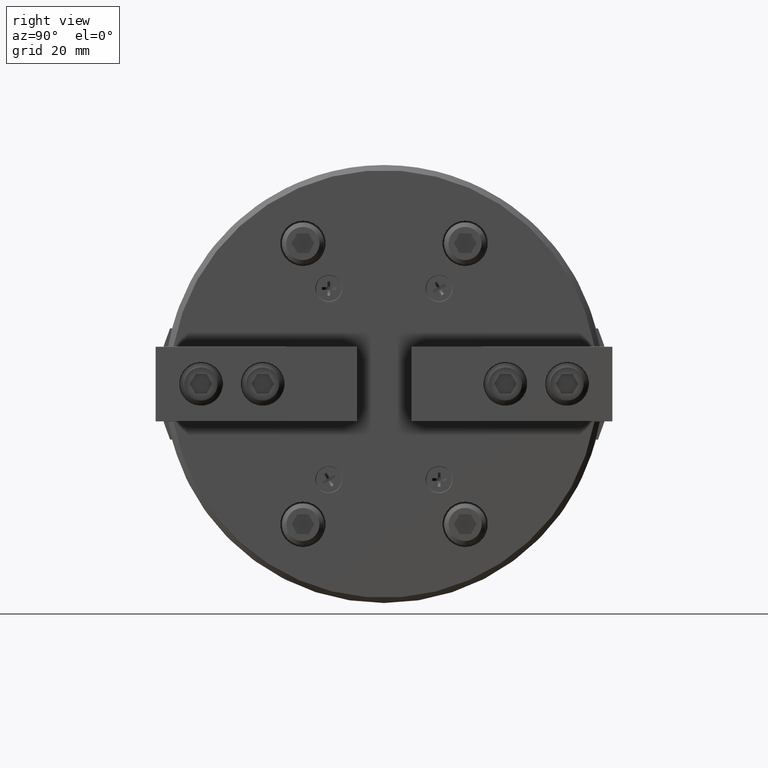
[diagram: clean part render]
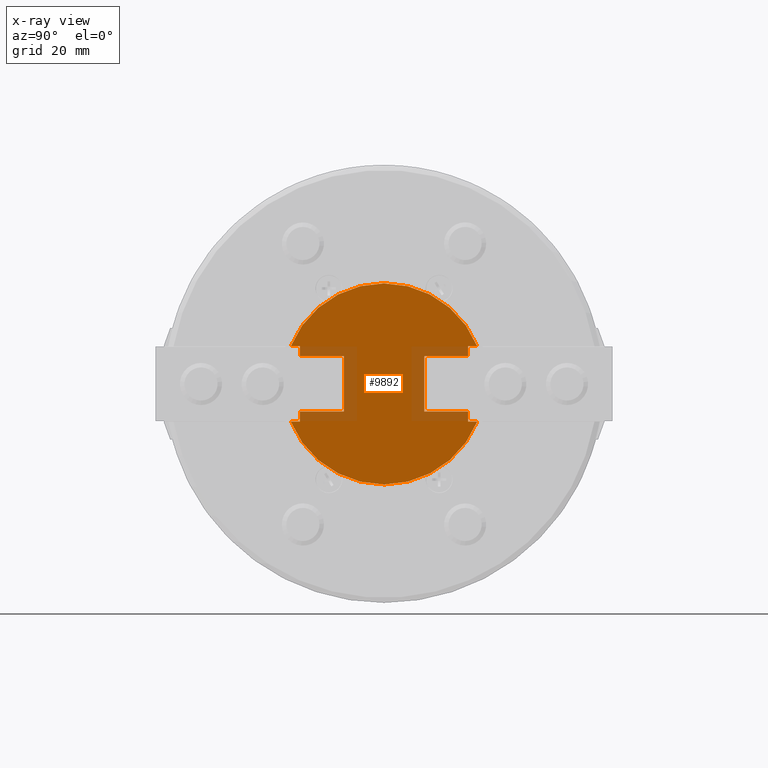
[diagram: x-ray — body ghosted, one internal face saturated and labeled with its STEP entity id]
A machine part, right view, then the same camera in x-ray: the body is ghosted and one INTERNAL B-rep face — a face not visible from any outside direction — is saturated and labeled: STEP entity #9892.
In plain terms, the highlighted planar face has unit normal (-1, 0, 0).
Its self-contained STEP definition (entity closure, byte-faithful):
#584=CIRCLE('',#10822,31.);
#585=CIRCLE('',#10823,31.);
#3205=ORIENTED_EDGE('',*,*,#4584,.T.);
#3206=ORIENTED_EDGE('',*,*,#4597,.T.);
#3207=ORIENTED_EDGE('',*,*,#4598,.T.);
#3208=ORIENTED_EDGE('',*,*,#4599,.T.);
#3209=ORIENTED_EDGE('',*,*,#4600,.T.);
#3210=ORIENTED_EDGE('',*,*,#4601,.T.);
#3211=ORIENTED_EDGE('',*,*,#4602,.T.);
#3212=ORIENTED_EDGE('',*,*,#4603,.T.);
#3213=ORIENTED_EDGE('',*,*,#4604,.T.);
#3214=ORIENTED_EDGE('',*,*,#4605,.T.);
#3215=ORIENTED_EDGE('',*,*,#4591,.F.);
#3216=ORIENTED_EDGE('',*,*,#4588,.T.);
#3217=ORIENTED_EDGE('',*,*,#4594,.T.);
#3218=ORIENTED_EDGE('',*,*,#4596,.T.);
#3219=ORIENTED_EDGE('',*,*,#4581,.F.);
#3220=ORIENTED_EDGE('',*,*,#4578,.F.);
#4578=EDGE_CURVE('',#5489,#5487,#6428,.T.);
#4581=EDGE_CURVE('',#5487,#5491,#6431,.T.);
#4584=EDGE_CURVE('',#5489,#5493,#6434,.T.);
#4588=EDGE_CURVE('',#5495,#5497,#6438,.T.);
#4591=EDGE_CURVE('',#5495,#5498,#6441,.T.);
#4594=EDGE_CURVE('',#5497,#5501,#6444,.T.);
#4596=EDGE_CURVE('',#5501,#5491,#6446,.T.);
#4597=EDGE_CURVE('',#5493,#5502,#584,.T.);
#4598=EDGE_CURVE('',#5502,#5503,#6447,.T.);
#4599=EDGE_CURVE('',#5503,#5504,#6448,.T.);
#4600=EDGE_CURVE('',#5504,#5505,#6449,.T.);
#4601=EDGE_CURVE('',#5505,#5506,#6450,.T.);
#4602=EDGE_CURVE('',#5506,#5507,#6451,.T.);
#4603=EDGE_CURVE('',#5507,#5508,#6452,.T.);
#4604=EDGE_CURVE('',#5508,#5509,#6453,.T.);
#4605=EDGE_CURVE('',#5509,#5498,#585,.T.);
#5487=VERTEX_POINT('',#16596);
#5489=VERTEX_POINT('',#16600);
#5491=VERTEX_POINT('',#16605);
#5493=VERTEX_POINT('',#16612);
#5495=VERTEX_POINT('',#16617);
#5497=VERTEX_POINT('',#16621);
#5498=VERTEX_POINT('',#16625);
#5501=VERTEX_POINT('',#16633);
#5502=VERTEX_POINT('',#16640);
#5503=VERTEX_POINT('',#16642);
#5504=VERTEX_POINT('',#16644);
#5505=VERTEX_POINT('',#16646);
#5506=VERTEX_POINT('',#16648);
#5507=VERTEX_POINT('',#16650);
#5508=VERTEX_POINT('',#16652);
#5509=VERTEX_POINT('',#16654);
#6428=LINE('',#16601,#7374);
#6431=LINE('',#16607,#7377);
#6434=LINE('',#16613,#7380);
#6438=LINE('',#16622,#7384);
#6441=LINE('',#16628,#7387);
#6444=LINE('',#16634,#7390);
#6446=LINE('',#16637,#7392);
#6447=LINE('',#16641,#7393);
#6448=LINE('',#16643,#7394);
#6449=LINE('',#16645,#7395);
#6450=LINE('',#16647,#7396);
#6451=LINE('',#16649,#7397);
#6452=LINE('',#16651,#7398);
#6453=LINE('',#16653,#7399);
#7374=VECTOR('',#13531,1000.);
#7377=VECTOR('',#13536,1000.);
#7380=VECTOR('',#13541,1000.);
#7384=VECTOR('',#13547,1000.);
#7387=VECTOR('',#13552,1000.);
#7390=VECTOR('',#13557,1000.);
#7392=VECTOR('',#13561,1000.);
#7393=VECTOR('',#13566,1000.);
#7394=VECTOR('',#13567,1000.);
#7395=VECTOR('',#13568,1000.);
#7396=VECTOR('',#13569,1000.);
#7397=VECTOR('',#13570,1000.);
#7398=VECTOR('',#13571,1000.);
#7399=VECTOR('',#13572,1000.);
#8142=EDGE_LOOP('',(#3205,#3206,#3207,#3208,#3209,#3210,#3211,#3212,#3213,
#3214,#3215,#3216,#3217,#3218,#3219,#3220));
#8890=FACE_BOUND('',#8142,.T.);
#9314=PLANE('',#10821);
#9892=ADVANCED_FACE('',(#8890),#9314,.T.);
#10821=AXIS2_PLACEMENT_3D('',#16638,#13562,#13563);
#10822=AXIS2_PLACEMENT_3D('',#16639,#13564,#13565);
#10823=AXIS2_PLACEMENT_3D('',#16655,#13573,#13574);
#13531=DIRECTION('',(0.,6.98296267768627E-15,-1.));
#13536=DIRECTION('',(0.,1.,6.98296267768627E-15));
#13541=DIRECTION('',(0.,-1.,-6.98296267768627E-15));
#13547=DIRECTION('',(0.,-6.98296267768627E-15,1.));
#13552=DIRECTION('',(0.,-1.,-6.98296267768627E-15));
#13557=DIRECTION('',(0.,1.,6.98296267768627E-15));
#13561=DIRECTION('',(0.,-6.98296267768627E-15,1.));
#13562=DIRECTION('',(-1.,0.,0.));
#13563=DIRECTION('',(0.,0.,1.));
#13564=DIRECTION('',(-1.,0.,0.));
#13565=DIRECTION('',(0.,0.,1.));
#13566=DIRECTION('',(0.,-1.,0.));
#13567=DIRECTION('',(0.,0.,-1.));
#13568=DIRECTION('',(0.,-1.,0.));
#13569=DIRECTION('',(0.,0.,-1.));
#13570=DIRECTION('',(0.,1.,0.));
#13571=DIRECTION('',(0.,0.,-1.));
#13572=DIRECTION('',(0.,1.,0.));
#13573=DIRECTION('',(-1.,0.,0.));
#13574=DIRECTION('',(0.,0.,1.));
#16596=CARTESIAN_POINT('',(-2.,-25.9000000000001,8.49999999999982));
#16600=CARTESIAN_POINT('',(-2.,-25.9000000000001,11.5999999999998));
#16601=CARTESIAN_POINT('',(-2.,-25.9000000000001,8.49999999999982));
#16605=CARTESIAN_POINT('',(-2.,-12.4000000000001,8.49999999999991));
#16607=CARTESIAN_POINT('',(-2.,-12.4000000000001,8.49999999999991));
#16612=CARTESIAN_POINT('',(-2.,-28.7478694862768,11.5999999999998));
#16613=CARTESIAN_POINT('',(-2.,-67.9000000000001,11.5999999999995));
#16617=CARTESIAN_POINT('',(-2.,-25.8999999999999,-11.6000000000002));
#16621=CARTESIAN_POINT('',(-2.,-25.8999999999999,-8.50000000000018));
#16622=CARTESIAN_POINT('',(-2.,-25.8999999999999,-8.50000000000018));
#16625=CARTESIAN_POINT('',(-2.,-28.7478694862766,-11.6000000000002));
#16628=CARTESIAN_POINT('',(-2.,-67.8999999999999,-11.6000000000005));
#16633=CARTESIAN_POINT('',(-2.,-12.3999999999999,-8.50000000000009));
#16634=CARTESIAN_POINT('',(-2.,-12.3999999999999,-8.50000000000009));
#16637=CARTESIAN_POINT('',(-2.,-12.4,3.29999999999992));
#16638=CARTESIAN_POINT('',(-2.,-1.36167772214882E-13,-39.));
#16639=CARTESIAN_POINT('',(-2.,0.,0.));
#16640=CARTESIAN_POINT('',(-2.,28.7478694862767,11.6));
#16641=CARTESIAN_POINT('',(-2.,-1.36167772214882E-13,11.6));
#16642=CARTESIAN_POINT('',(-2.,25.9,11.6));
#16643=CARTESIAN_POINT('',(-2.,25.9,-39.));
#16644=CARTESIAN_POINT('',(-2.,25.9,8.5));
#16645=CARTESIAN_POINT('',(-2.,-1.36167772214882E-13,8.5));
#16646=CARTESIAN_POINT('',(-2.,12.4,8.5));
#16647=CARTESIAN_POINT('',(-2.,12.4,-39.));
#16648=CARTESIAN_POINT('',(-2.,12.4,-8.5));
#16649=CARTESIAN_POINT('',(-2.,-1.36167772214882E-13,-8.5));
#16650=CARTESIAN_POINT('',(-2.,25.9,-8.5));
#16651=CARTESIAN_POINT('',(-2.,25.9,-39.));
#16652=CARTESIAN_POINT('',(-2.,25.9,-11.6));
#16653=CARTESIAN_POINT('',(-2.,-1.36167772214882E-13,-11.6));
#16654=CARTESIAN_POINT('',(-2.,28.7478694862767,-11.6));
#16655=CARTESIAN_POINT('',(-2.,0.,0.));